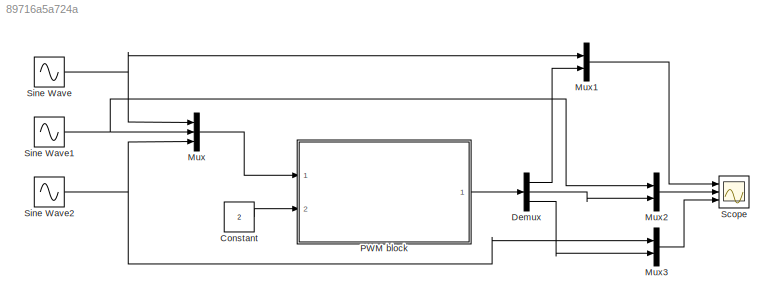
MODEL slx_89716a5a724a
KIND model
CONFIG AbsTol = auto
CONFIG FixedStep = Ts
CONFIG MaxStep = auto
CONFIG MinStep = auto
CONFIG RelTol = 1e-3
CONFIG SampleTimeConstraint = Unconstrained
CONFIG Solver = ode3
CONFIG SolverMode = Auto
CONFIG SolverName = ode3
CONFIG StartTime = 0.0
CONFIG StopTime = 3
BLOCK [Constant] Constant
  Value = 2
BLOCK [Demux] Demux
  DisplayOption = bar
  Outputs = 3
  Ports = [1, 3]
BLOCK [Mux] Mux
  DisplayOption = bar
  Inputs = 3
  Ports = [3, 1]
BLOCK [Mux] Mux1
  DisplayOption = bar
  Inputs = 2
  Ports = [2, 1]
BLOCK [Mux] Mux2
  DisplayOption = bar
  Inputs = 2
  Ports = [2, 1]
BLOCK [Mux] Mux3
  DisplayOption = bar
  Inputs = 2
  Ports = [2, 1]
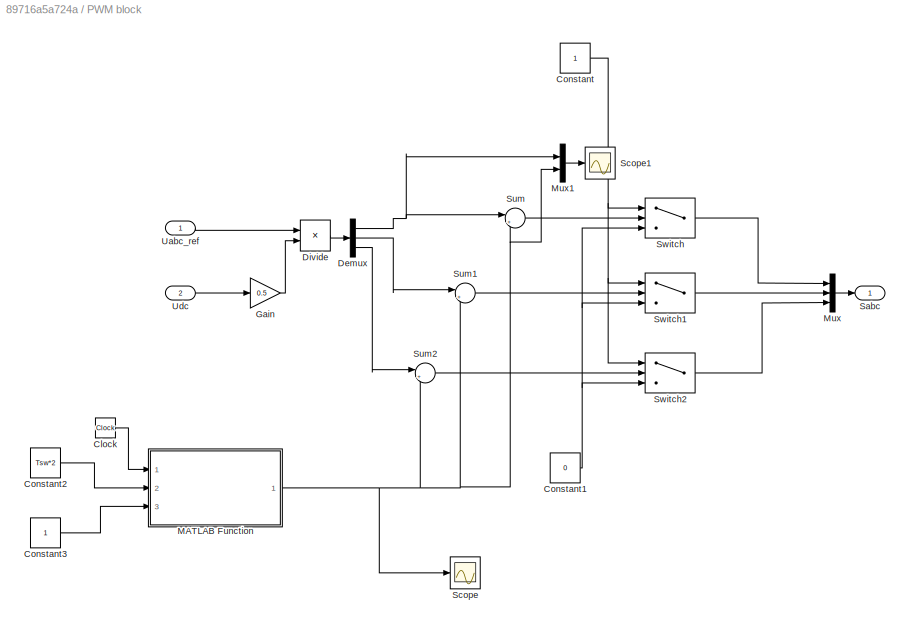
BLOCK [SubSystem] PWM block
  Ports = [2, 1]
  RequestExecContextInheritance = off
BLOCK [Clock] PWM block/Clock
BLOCK [Constant] PWM block/Constant
BLOCK [Constant] PWM block/Constant1
  Value = 0
BLOCK [Constant] PWM block/Constant2
  Value = Tsw*2
BLOCK [Constant] PWM block/Constant3
BLOCK [Demux] PWM block/Demux
  DisplayOption = bar
  Outputs = 3
  Ports = [1, 3]
BLOCK [Product] PWM block/Divide
  InputSameDT = off
  Inputs = */
  OutDataTypeStr = Inherit: Inherit via internal rule
  Ports = [2, 1]
  RndMeth = Floor
  SaturateOnIntegerOverflow = off
BLOCK [Gain] PWM block/Gain
  Gain = 0.5
  OutDataTypeStr = Inherit: Inherit via internal rule
  ParamDataTypeStr = Inherit: Inherit via internal rule
  SaturateOnIntegerOverflow = off
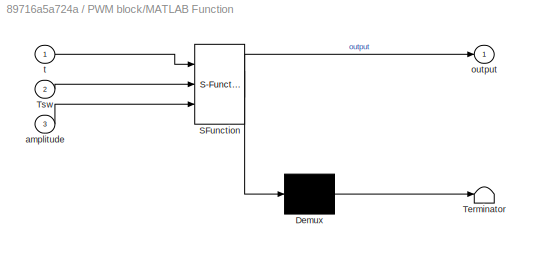
BLOCK [SubSystem] PWM block/MATLAB Function
  ErrorFcn = Stateflow.Translate.translate
  PermitHierarchicalResolution = ExplicitOnly
  Ports = [3, 1]
  RequestExecContextInheritance = off
  SFBlockType = MATLAB Function
  TreatAsAtomicUnit = on
BLOCK [Demux] PWM block/MATLAB Function/ Demux 
  Outputs = 1
  Ports = [1, 1]
BLOCK [S-Function] PWM block/MATLAB Function/ SFunction 
  EnableBusSupport = on
  FunctionName = sf_sfun
  PortCounts = [3 2]
  Ports = [3, 2]
  Tag = Stateflow S-Function pwm_block 2
BLOCK [Terminator] PWM block/MATLAB Function/ Terminator 
BLOCK [Inport] PWM block/MATLAB Function/Tsw
  IconDisplay = Port number
  Port = 2
BLOCK [Inport] PWM block/MATLAB Function/amplitude
  IconDisplay = Port number
  Port = 3
BLOCK [Outport] PWM block/MATLAB Function/output
  IconDisplay = Port number
BLOCK [Inport] PWM block/MATLAB Function/t
  IconDisplay = Port number
BLOCK [Mux] PWM block/Mux
  DisplayOption = bar
  Inputs = 3
  Ports = [3, 1]
BLOCK [Mux] PWM block/Mux1
  DisplayOption = bar
  Inputs = 2
  Ports = [2, 1]
BLOCK [Outport] PWM block/Sabc
  IconDisplay = Port number
BLOCK [Scope] PWM block/Scope
  Floating = off
  LimitDataPoints = off
  NumInputPorts = 1
  Ports = [1]
  ZoomMode = xonly
BLOCK [Scope] PWM block/Scope1
  Floating = off
  LimitDataPoints = off
  NumInputPorts = 1
  Ports = [1]
  SaveName = ScopeData2
  ZoomMode = xonly
BLOCK [Sum] PWM block/Sum
  IconShape = round
  InputSameDT = off
  Inputs = |+-
  OutDataTypeStr = Inherit: Inherit via internal rule
  Ports = [2, 1]
  SaturateOnIntegerOverflow = off
BLOCK [Sum] PWM block/Sum1
  IconShape = round
  InputSameDT = off
  Inputs = |+-
  OutDataTypeStr = Inherit: Inherit via internal rule
  Ports = [2, 1]
  SaturateOnIntegerOverflow = off
BLOCK [Sum] PWM block/Sum2
  IconShape = round
  InputSameDT = off
  Inputs = |+-
  OutDataTypeStr = Inherit: Inherit via internal rule
  Ports = [2, 1]
  SaturateOnIntegerOverflow = off
BLOCK [Switch] PWM block/Switch
  Criteria = u2 > Threshold
  InputSameDT = off
  SaturateOnIntegerOverflow = off
BLOCK [Switch] PWM block/Switch1
  Criteria = u2 > Threshold
  InputSameDT = off
  SaturateOnIntegerOverflow = off
BLOCK [Switch] PWM block/Switch2
  Criteria = u2 > Threshold
  InputSameDT = off
  SaturateOnIntegerOverflow = off
BLOCK [Inport] PWM block/Uabc_ref
  IconDisplay = Port number
BLOCK [Inport] PWM block/Udc
  IconDisplay = Port number
  Port = 2
BLOCK [Scope] Scope
  Floating = off
  LimitDataPoints = off
  NumInputPorts = 3
  Ports = [3]
  SaveName = ScopeData1
  YMax = 5~5~5
  YMin = -5~-5~-5
  ZoomMode = xonly
BLOCK [Sin] Sine Wave
  Frequency = 50*2*pi
  Ports = [0, 1]
  SampleTime = 0
BLOCK [Sin] Sine Wave1
  Frequency = 50*2*pi
  Phase = 2*pi/3
  Ports = [0, 1]
  SampleTime = 0
BLOCK [Sin] Sine Wave2
  Frequency = 50*2*pi
  Phase = 4*pi/3
  Ports = [0, 1]
  SampleTime = 0
LINE Constant:1 -> PWM block:2
LINE Demux:1 -> Mux1:2
LINE Demux:2 -> Mux2:2
LINE Demux:3 -> Mux3:2
LINE Mux1:1 -> Scope:1
LINE Mux2:1 -> Scope:2
LINE Mux3:1 -> Scope:3
LINE Mux:1 -> PWM block:1
LINE PWM block/Clock:1 -> PWM block/MATLAB Function:1
NET PWM block/Constant1:1 -> PWM block/Switch1:3, PWM block/Switch2:3, PWM block/Switch:3
LINE PWM block/Constant2:1 -> PWM block/MATLAB Function:2
LINE PWM block/Constant3:1 -> PWM block/MATLAB Function:3
NET PWM block/Constant:1 -> PWM block/Switch1:1, PWM block/Switch2:1, PWM block/Switch:1
NET PWM block/Demux:1 -> PWM block/Mux1:1, PWM block/Sum:1
LINE PWM block/Demux:2 -> PWM block/Sum1:1
LINE PWM block/Demux:3 -> PWM block/Sum2:1
LINE PWM block/Divide:1 -> PWM block/Demux:1
LINE PWM block/Gain:1 -> PWM block/Divide:2
NET PWM block/MATLAB Function:1 -> PWM block/Mux1:2, PWM block/Scope:1, PWM block/Sum1:2, PWM block/Sum2:2, PWM block/Sum:2
LINE PWM block/Mux1:1 -> PWM block/Scope1:1
LINE PWM block/Mux:1 -> PWM block/Sabc:1
LINE PWM block/Sum1:1 -> PWM block/Switch1:2
LINE PWM block/Sum2:1 -> PWM block/Switch2:2
LINE PWM block/Sum:1 -> PWM block/Switch:2
LINE PWM block/Switch1:1 -> PWM block/Mux:2
LINE PWM block/Switch2:1 -> PWM block/Mux:3
LINE PWM block/Switch:1 -> PWM block/Mux:1
LINE PWM block/Uabc_ref:1 -> PWM block/Divide:1
LINE PWM block/Udc:1 -> PWM block/Gain:1
LINE PWM block:1 -> Demux:1
NET Sine Wave1:1 -> Mux2:1, Mux:2
NET Sine Wave2:1 -> Mux3:1, Mux:3
NET Sine Wave:1 -> Mux1:1, Mux:1
note: NET lines group one-source signal fan-out (src -> all destinations, sorted); 1:1 wires keep LINE
CHART PWM block/MATLAB Function states=1 transitions=1
  STATE_LABEL 'eML_blk_kernel()'
  STATE_LABEL 'SCRIPT:\nfunction output = triangle(t,Tsw,amplitude)\n%#codegen\n%persistent signal ; \npersistent t_offset ; \n\nif isempty(t_offset) \n    t_offset = 0 ;  \nend\n\nif (t-t_offset>Tsw)\n    t_offset = t ; \n    \nend \n\nif ((t-t_offset)<=(Tsw/2))\n    signal = -amplitude + (t-t_offset)*2*amplitude/(Tsw/2) ; \n   output = signal ;\n   return \n\n\nelse\n    signal = 3*amplitude -  (t-t_offset)*2*amplitude/(Tsw/2) ; \n ...<+42ch>'
